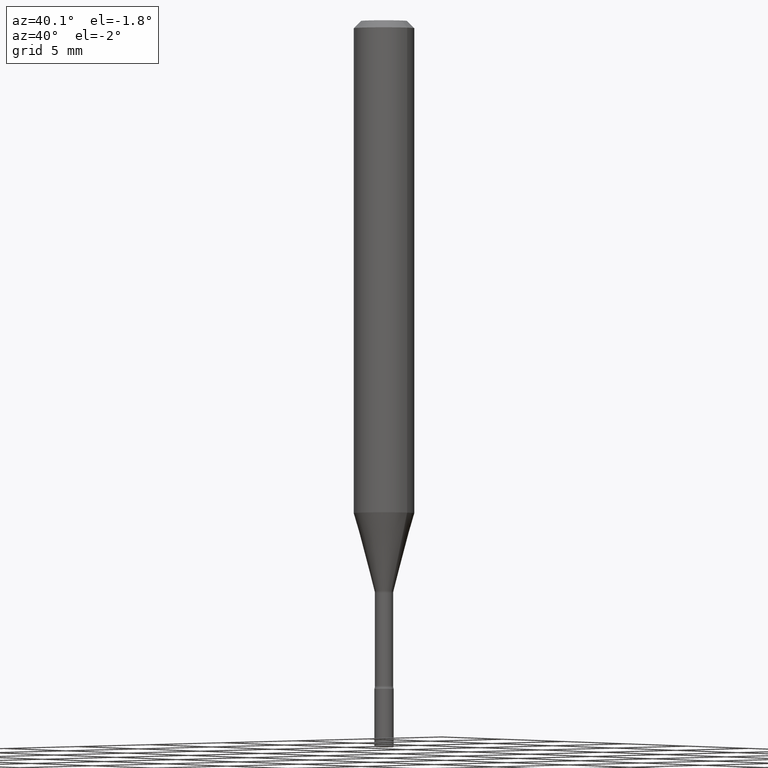
[diagram: clean part render]
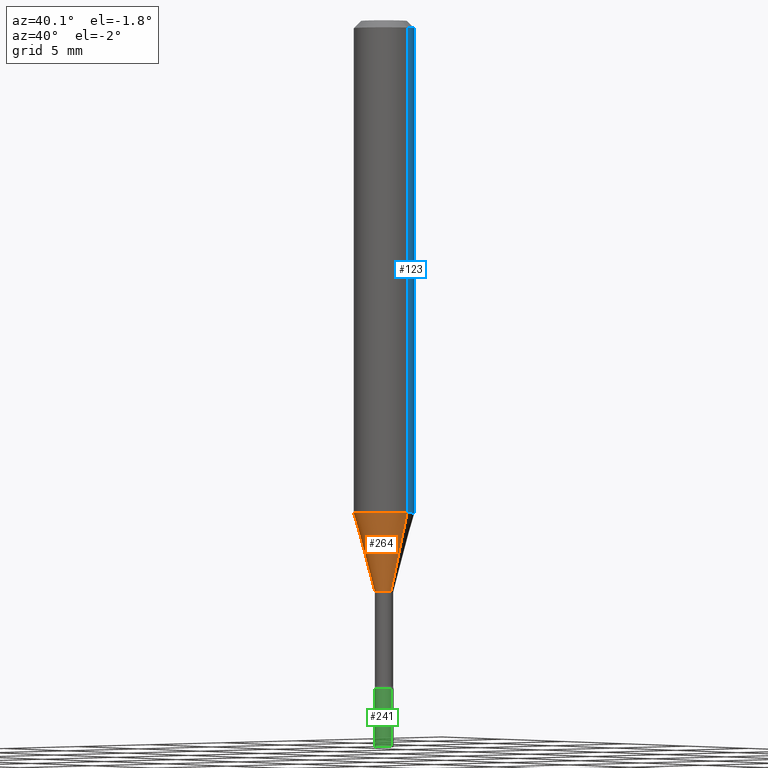
[diagram: same view with three faces highlighted in distinct colors, each labeled with its STEP entity id]
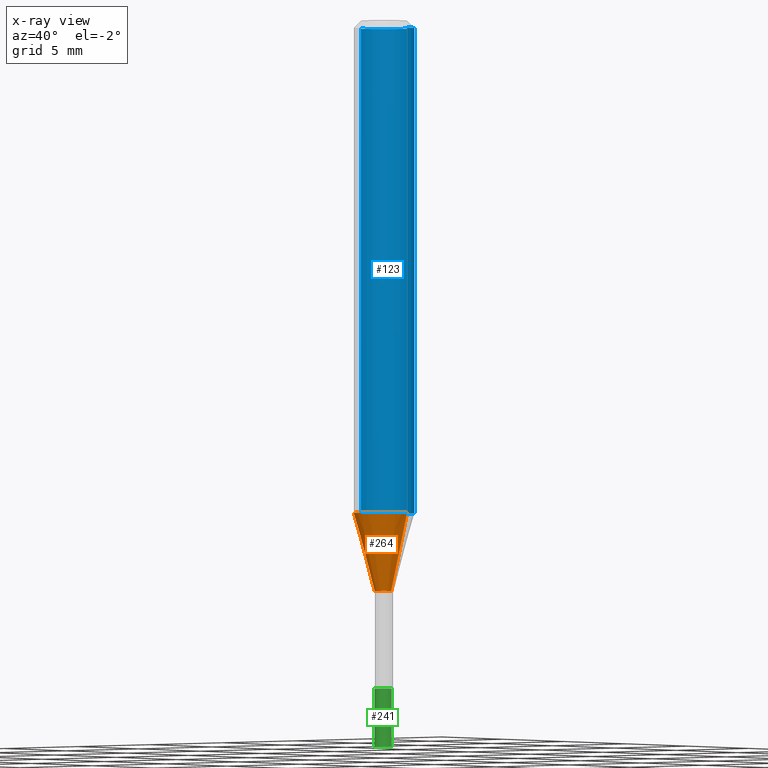
[diagram: x-ray of the same camera — body ghosted, the three highlighted faces saturated]
A machine part, auxiliary view with three faces highlighted in distinct colors.
The next image is the same camera in x-ray (body ghosted, the three faces saturated) — at least one of them is partly hidden behind the body in this view.
Their STEP definitions:

[orange] entity #264 — the highlighted conical surface has half-angle 15 deg.
#1 = CIRCLE ( 'NONE', #288, 0.06250000000000000000 ) ;
#3 = ORIENTED_EDGE ( 'NONE', *, *, #30, .F. ) ;
#8 = CIRCLE ( 'NONE', #176, 0.01931111260566394788 ) ;
#27 = CARTESIAN_POINT ( 'NONE',  ( 2.880988463921384240E-29, -4.113287985421300432E-15, -1.178092501787273427 ) ) ;
#30 = EDGE_CURVE ( 'NONE', #38, #234, #160, .T. ) ;
#38 = VERTEX_POINT ( 'NONE', #162 ) ;
#48 = AXIS2_PLACEMENT_3D ( 'NONE', #27, #132, #293 ) ;
#63 = CONICAL_SURFACE ( 'NONE', #48, 0.01931111260566394788, 0.2617993877991500740 ) ;
#68 = CARTESIAN_POINT ( 'NONE',  ( 2.880988463921384240E-29, -4.113287985421300432E-15, -1.178092501787273427 ) ) ;
#88 = EDGE_CURVE ( 'NONE', #394, #104, #287, .T. ) ;
#90 = VECTOR ( 'NONE', #439, 39.37007874015747433 ) ;
#102 = CARTESIAN_POINT ( 'NONE',  ( -0.06250000000000000000, -3.106430912699309362E-15, -1.016909379709240557 ) ) ;
#104 = VERTEX_POINT ( 'NONE', #441 ) ;
#122 = DIRECTION ( 'NONE',  ( 0.2588190451025213501, 1.565188264969621968E-15, 0.9659258262890682012 ) ) ;
#132 = DIRECTION ( 'NONE',  ( -2.445468806185136597E-29, 3.491481338843145583E-15, 1.000000000000000000 ) ) ;
#141 = DIRECTION ( 'NONE',  ( 1.000000000000000000, -6.982962677686270655E-15, 0.000000000000000000 ) ) ;
#160 = LINE ( 'NONE', #208, #90 ) ;
#162 = CARTESIAN_POINT ( 'NONE',  ( -0.01931111260566394788, -3.541252595153305287E-15, -1.178092501787273427 ) ) ;
#172 = FACE_OUTER_BOUND ( 'NONE', #516, .T. ) ;
#176 = AXIS2_PLACEMENT_3D ( 'NONE', #68, #509, #386 ) ;
#186 = ORIENTED_EDGE ( 'NONE', *, *, #88, .T. ) ;
#208 = CARTESIAN_POINT ( 'NONE',  ( -0.01931111260566394788, -3.976074277607302002E-15, -1.178092501787273427 ) ) ;
#224 = EDGE_CURVE ( 'NONE', #38, #394, #8, .T. ) ;
#234 = VERTEX_POINT ( 'NONE', #102 ) ;
#264 = ADVANCED_FACE ( 'NONE', ( #172 ), #63, .T. ) ;
#287 = LINE ( 'NONE', #447, #463 ) ;
#288 = AXIS2_PLACEMENT_3D ( 'NONE', #344, #512, #141 ) ;
#293 = DIRECTION ( 'NONE',  ( 1.000000000000000000, -6.982962677686273021E-15, 0.000000000000000000 ) ) ;
#307 = CARTESIAN_POINT ( 'NONE',  ( 0.01931111260566394788, -4.248136764011248280E-15, -1.178092501787273427 ) ) ;
#344 = CARTESIAN_POINT ( 'NONE',  ( 2.486820166796024310E-29, -3.550520122549371978E-15, -1.016909379709240557 ) ) ;
#386 = DIRECTION ( 'NONE',  ( 1.000000000000000000, -6.982962677686273021E-15, 0.000000000000000000 ) ) ;
#394 = VERTEX_POINT ( 'NONE', #307 ) ;
#399 = ORIENTED_EDGE ( 'NONE', *, *, #224, .T. ) ;
#411 = EDGE_CURVE ( 'NONE', #234, #104, #1, .T. ) ;
#415 = ORIENTED_EDGE ( 'NONE', *, *, #411, .F. ) ;
#439 = DIRECTION ( 'NONE',  ( -0.2588190451025213501, 5.211531920934551042E-15, 0.9659258262890682012 ) ) ;
#441 = CARTESIAN_POINT ( 'NONE',  ( 0.06250000000000000000, -3.986955289904763647E-15, -1.016909379709240557 ) ) ;
#447 = CARTESIAN_POINT ( 'NONE',  ( 0.01931111260566394788, -4.248136764011248280E-15, -1.178092501787273427 ) ) ;
#463 = VECTOR ( 'NONE', #122, 39.37007874015747433 ) ;
#509 = DIRECTION ( 'NONE',  ( -2.445468806185136597E-29, 3.491481338843145583E-15, 1.000000000000000000 ) ) ;
#512 = DIRECTION ( 'NONE',  ( -2.445468806185136597E-29, 3.491481338843145583E-15, 1.000000000000000000 ) ) ;
#516 = EDGE_LOOP ( 'NONE', ( #3, #399, #186, #415 ) ) ;

[blue] entity #123 — the highlighted cylindrical surface (edge-blend (fillet) strip) has radius 1.5875 mm, axis along (-0, 0, 1).
#9 = EDGE_LOOP ( 'NONE', ( #22, #372, #327, #79 ) ) ;
#19 = CARTESIAN_POINT ( 'NONE',  ( 2.486820166796024310E-29, -3.550520122549371978E-15, -1.016909379709240557 ) ) ;
#22 = ORIENTED_EDGE ( 'NONE', *, *, #86, .T. ) ;
#34 = VERTEX_POINT ( 'NONE', #284 ) ;
#47 = CARTESIAN_POINT ( 'NONE',  ( 0.000000000000000000, 0.000000000000000000, 0.000000000000000000 ) ) ;
#67 = CARTESIAN_POINT ( 'NONE',  ( -0.06250000000000000000, -1.357356961465947110E-15, -0.01500000000000003067 ) ) ;
#79 = ORIENTED_EDGE ( 'NONE', *, *, #514, .F. ) ;
#86 = EDGE_CURVE ( 'NONE', #104, #234, #328, .T. ) ;
#102 = CARTESIAN_POINT ( 'NONE',  ( -0.06250000000000000000, -3.106430912699309362E-15, -1.016909379709240557 ) ) ;
#104 = VERTEX_POINT ( 'NONE', #441 ) ;
#105 = VECTOR ( 'NONE', #225, 39.37007874015748143 ) ;
#109 = DIRECTION ( 'NONE',  ( 1.000000000000000000, -6.982962677686266711E-15, 0.000000000000000000 ) ) ;
#120 = AXIS2_PLACEMENT_3D ( 'NONE', #47, #262, #261 ) ;
#123 = ADVANCED_FACE ( 'NONE', ( #242 ), #402, .T. ) ;
#124 = LINE ( 'NONE', #285, #150 ) ;
#126 = DIRECTION ( 'NONE',  ( 1.000000000000000000, -6.982962677686270655E-15, 0.000000000000000000 ) ) ;
#145 = DIRECTION ( 'NONE',  ( -2.445468806185136597E-29, 3.491481338843145583E-15, 1.000000000000000000 ) ) ;
#146 = VERTEX_POINT ( 'NONE', #67 ) ;
#150 = VECTOR ( 'NONE', #498, 39.37007874015748143 ) ;
#191 = EDGE_CURVE ( 'NONE', #234, #146, #383, .T. ) ;
#225 = DIRECTION ( 'NONE',  ( -2.445468806185136877E-29, 3.491481338843145188E-15, 1.000000000000000000 ) ) ;
#234 = VERTEX_POINT ( 'NONE', #102 ) ;
#242 = FACE_OUTER_BOUND ( 'NONE', #9, .T. ) ;
#260 = AXIS2_PLACEMENT_3D ( 'NONE', #388, #145, #109 ) ;
#261 = DIRECTION ( 'NONE',  ( 1.000000000000000000, -6.982962677686266711E-15, 4.876176775795935793E-29 ) ) ;
#262 = DIRECTION ( 'NONE',  ( -2.445468806185136597E-29, 3.491481338843145583E-15, 1.000000000000000000 ) ) ;
#284 = CARTESIAN_POINT ( 'NONE',  ( 0.06250000000000000000, -4.888073874380389458E-16, -0.01500000000000003067 ) ) ;
#285 = CARTESIAN_POINT ( 'NONE',  ( 0.06250000000000000000, -4.364351673553916694E-16, 3.047610484872459871E-30 ) ) ;
#327 = ORIENTED_EDGE ( 'NONE', *, *, #443, .F. ) ;
#328 = CIRCLE ( 'NONE', #396, 0.06250000000000000000 ) ;
#341 = CARTESIAN_POINT ( 'NONE',  ( -0.06250000000000000000, 4.440892098500626162E-16, -3.074334431409316114E-30 ) ) ;
#372 = ORIENTED_EDGE ( 'NONE', *, *, #191, .T. ) ;
#383 = LINE ( 'NONE', #341, #105 ) ;
#388 = CARTESIAN_POINT ( 'NONE',  ( 3.668203209277712094E-31, -5.237222008264728876E-17, -0.01500000000000003067 ) ) ;
#396 = AXIS2_PLACEMENT_3D ( 'NONE', #19, #486, #126 ) ;
#402 = CYLINDRICAL_SURFACE ( 'NONE', #120, 0.06250000000000000000 ) ;
#441 = CARTESIAN_POINT ( 'NONE',  ( 0.06250000000000000000, -3.986955289904763647E-15, -1.016909379709240557 ) ) ;
#443 = EDGE_CURVE ( 'NONE', #34, #146, #495, .T. ) ;
#486 = DIRECTION ( 'NONE',  ( -2.445468806185136597E-29, 3.491481338843145583E-15, 1.000000000000000000 ) ) ;
#495 = CIRCLE ( 'NONE', #260, 0.06250000000000000000 ) ;
#498 = DIRECTION ( 'NONE',  ( -2.445468806185136877E-29, 3.491481338843145188E-15, 1.000000000000000000 ) ) ;
#514 = EDGE_CURVE ( 'NONE', #104, #34, #124, .T. ) ;

[green] entity #241 — the highlighted cylindrical surface (edge-blend (fillet) strip) has radius 0.508 mm, axis along (-0, 0, 1).
#6 = CARTESIAN_POINT ( 'NONE',  ( -0.02000000000000000042, 1.421085471520200401E-16, -9.837870180509812545E-31 ) ) ;
#21 = DIRECTION ( 'NONE',  ( 1.000000000000000000, -6.982962677686265922E-15, 4.876176775795935793E-29 ) ) ;
#25 = AXIS2_PLACEMENT_3D ( 'NONE', #300, #222, #385 ) ;
#33 = DIRECTION ( 'NONE',  ( -2.445468806185136597E-29, 3.491481338843145583E-15, 1.000000000000000000 ) ) ;
#36 = VERTEX_POINT ( 'NONE', #291 ) ;
#41 = CARTESIAN_POINT ( 'NONE',  ( -0.02000000000000000042, -4.885624580782109696E-15, -1.500000000000000222 ) ) ;
#59 = CYLINDRICAL_SURFACE ( 'NONE', #362, 0.02000000000000000042 ) ;
#73 = VECTOR ( 'NONE', #369, 39.37007874015748143 ) ;
#127 = CIRCLE ( 'NONE', #303, 0.02000000000000000042 ) ;
#140 = CIRCLE ( 'NONE', #25, 0.02000000000000000042 ) ;
#175 = CARTESIAN_POINT ( 'NONE',  ( 0.02000000000000000042, -1.396592535537253145E-16, 9.752353551591871936E-31 ) ) ;
#185 = DIRECTION ( 'NONE',  ( 1.000000000000000000, -6.982962677686284065E-15, 0.000000000000000000 ) ) ;
#187 = EDGE_CURVE ( 'NONE', #36, #196, #218, .T. ) ;
#190 = EDGE_CURVE ( 'NONE', #266, #196, #140, .T. ) ;
#196 = VERTEX_POINT ( 'NONE', #220 ) ;
#218 = LINE ( 'NONE', #175, #329 ) ;
#220 = CARTESIAN_POINT ( 'NONE',  ( 0.02000000000000000042, -4.957903501157267351E-15, -1.380000000000000115 ) ) ;
#222 = DIRECTION ( 'NONE',  ( -2.445468806185136597E-29, 3.491481338843145583E-15, 1.000000000000000000 ) ) ;
#236 = ORIENTED_EDGE ( 'NONE', *, *, #190, .F. ) ;
#241 = ADVANCED_FACE ( 'NONE', ( #257 ), #59, .T. ) ;
#250 = EDGE_LOOP ( 'NONE', ( #255, #471, #318, #236 ) ) ;
#255 = ORIENTED_EDGE ( 'NONE', *, *, #496, .F. ) ;
#257 = FACE_OUTER_BOUND ( 'NONE', #250, .T. ) ;
#266 = VERTEX_POINT ( 'NONE', #452 ) ;
#280 = LINE ( 'NONE', #6, #73 ) ;
#291 = CARTESIAN_POINT ( 'NONE',  ( 0.02000000000000000042, -5.376881261818443984E-15, -1.500000000000000222 ) ) ;
#297 = DIRECTION ( 'NONE',  ( -2.445468806185136597E-29, 3.491481338843145583E-15, 1.000000000000000000 ) ) ;
#300 = CARTESIAN_POINT ( 'NONE',  ( 3.374746952535488593E-29, -4.818244247603541543E-15, -1.380000000000000115 ) ) ;
#303 = AXIS2_PLACEMENT_3D ( 'NONE', #432, #33, #185 ) ;
#315 = EDGE_CURVE ( 'NONE', #349, #36, #127, .T. ) ;
#318 = ORIENTED_EDGE ( 'NONE', *, *, #187, .T. ) ;
#329 = VECTOR ( 'NONE', #461, 39.37007874015748143 ) ;
#349 = VERTEX_POINT ( 'NONE', #41 ) ;
#362 = AXIS2_PLACEMENT_3D ( 'NONE', #503, #297, #21 ) ;
#369 = DIRECTION ( 'NONE',  ( -2.445468806185136877E-29, 3.491481338843145188E-15, 1.000000000000000000 ) ) ;
#385 = DIRECTION ( 'NONE',  ( 1.000000000000000000, -6.982962677686284065E-15, 0.000000000000000000 ) ) ;
#432 = CARTESIAN_POINT ( 'NONE',  ( 3.668203209277704895E-29, -5.237222008264718177E-15, -1.500000000000000222 ) ) ;
#452 = CARTESIAN_POINT ( 'NONE',  ( -0.02000000000000000042, -4.885624580782109696E-15, -1.380000000000000115 ) ) ;
#461 = DIRECTION ( 'NONE',  ( -2.445468806185136877E-29, 3.491481338843145188E-15, 1.000000000000000000 ) ) ;
#471 = ORIENTED_EDGE ( 'NONE', *, *, #315, .T. ) ;
#496 = EDGE_CURVE ( 'NONE', #349, #266, #280, .T. ) ;
#503 = CARTESIAN_POINT ( 'NONE',  ( 0.000000000000000000, 0.000000000000000000, 0.000000000000000000 ) ) ;